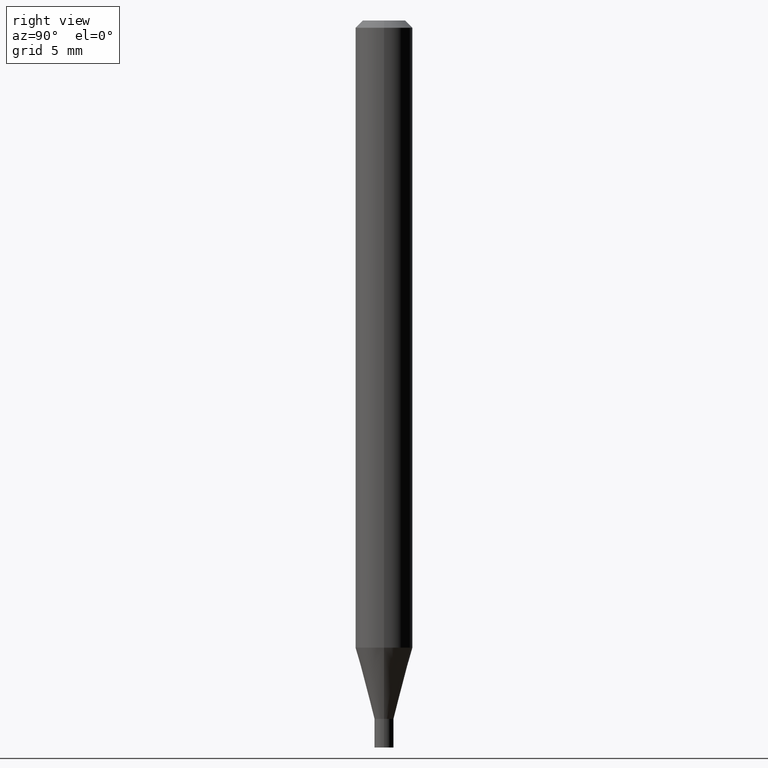
[diagram: clean part render]
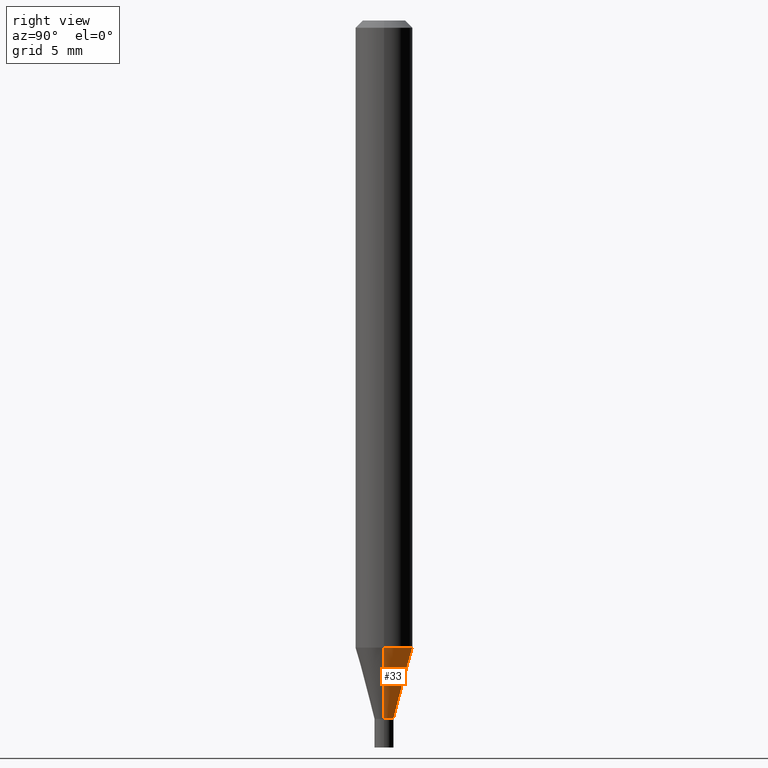
[diagram: same view with one face highlighted and labeled with its STEP entity id]
A machine part, right view. The second image highlights one B-rep face of the part: STEP entity #33.
In plain terms, the highlighted conical surface has half-angle 15 deg.
Its self-contained STEP definition (entity closure, byte-faithful):
#1 = FACE_OUTER_BOUND ( 'NONE', #382, .T. ) ;
#2 = EDGE_CURVE ( 'NONE', #422, #237, #458, .T. ) ;
#9 = DIRECTION ( 'NONE',  ( -2.445468806185136597E-29, 3.491481338843145583E-15, 1.000000000000000000 ) ) ;
#13 = AXIS2_PLACEMENT_3D ( 'NONE', #110, #395, #439 ) ;
#33 = ADVANCED_FACE ( 'NONE', ( #1 ), #206, .T. ) ;
#68 = ORIENTED_EDGE ( 'NONE', *, *, #449, .T. ) ;
#70 = DIRECTION ( 'NONE',  ( -2.445468806185136597E-29, 3.491481338843145583E-15, 1.000000000000000000 ) ) ;
#91 = CIRCLE ( 'NONE', #459, 0.05904999999999999832 ) ;
#97 = CARTESIAN_POINT ( 'NONE',  ( 0.01969999999999964835, -5.168439825889506203E-15, -1.440900000000000292 ) ) ;
#102 = LINE ( 'NONE', #97, #441 ) ;
#108 = VERTEX_POINT ( 'NONE', #406 ) ;
#110 = CARTESIAN_POINT ( 'NONE',  ( 3.523676002832163563E-29, -5.030875461139089355E-15, -1.440900000000000292 ) ) ;
#142 = VERTEX_POINT ( 'NONE', #241 ) ;
#156 = EDGE_CURVE ( 'NONE', #142, #108, #91, .T. ) ;
#168 = ORIENTED_EDGE ( 'NONE', *, *, #311, .F. ) ;
#192 = DIRECTION ( 'NONE',  ( 0.2588190451025213501, 1.565188264969621968E-15, 0.9659258262890682012 ) ) ;
#194 = CARTESIAN_POINT ( 'NONE',  ( 0.01969999999999964835, -5.168439825889506203E-15, -1.440900000000000292 ) ) ;
#195 = ORIENTED_EDGE ( 'NONE', *, *, #2, .T. ) ;
#200 = CARTESIAN_POINT ( 'NONE',  ( -0.01969999999999964835, -4.890898542194352413E-15, -1.440900000000000292 ) ) ;
#206 = CONICAL_SURFACE ( 'NONE', #13, 0.01969999999999964835, 0.2617993877991500740 ) ;
#237 = VERTEX_POINT ( 'NONE', #277 ) ;
#241 = CARTESIAN_POINT ( 'NONE',  ( 0.05905000000000000526, -4.930473727984467433E-15, -1.294043800722163962 ) ) ;
#242 = DIRECTION ( 'NONE',  ( 1.000000000000000000, -6.982962677686255667E-15, 0.000000000000000000 ) ) ;
#243 = VECTOR ( 'NONE', #341, 39.37007874015747433 ) ;
#264 = AXIS2_PLACEMENT_3D ( 'NONE', #353, #9, #242 ) ;
#273 = LINE ( 'NONE', #200, #243 ) ;
#277 = CARTESIAN_POINT ( 'NONE',  ( -0.01969999999999964835, -4.494726419297553505E-15, -1.440900000000000292 ) ) ;
#311 = EDGE_CURVE ( 'NONE', #422, #142, #102, .T. ) ;
#321 = ORIENTED_EDGE ( 'NONE', *, *, #156, .F. ) ;
#341 = DIRECTION ( 'NONE',  ( -0.2588190451025213501, 5.211531920934551042E-15, 0.9659258262890682012 ) ) ;
#348 = DIRECTION ( 'NONE',  ( 1.000000000000000000, -6.982962677686273021E-15, 0.000000000000000000 ) ) ;
#353 = CARTESIAN_POINT ( 'NONE',  ( 3.523676002832163563E-29, -5.030875461139089355E-15, -1.440900000000000292 ) ) ;
#382 = EDGE_LOOP ( 'NONE', ( #195, #68, #321, #168 ) ) ;
#394 = CARTESIAN_POINT ( 'NONE',  ( 3.164543748503307071E-29, -4.518129781867094090E-15, -1.294043800722163962 ) ) ;
#395 = DIRECTION ( 'NONE',  ( -2.445468806185136597E-29, 3.491481338843145583E-15, 1.000000000000000000 ) ) ;
#406 = CARTESIAN_POINT ( 'NONE',  ( -0.05905000000000000526, -4.098554296400754597E-15, -1.294043800722163962 ) ) ;
#422 = VERTEX_POINT ( 'NONE', #194 ) ;
#439 = DIRECTION ( 'NONE',  ( 1.000000000000000000, -6.982962677686255667E-15, 0.000000000000000000 ) ) ;
#441 = VECTOR ( 'NONE', #192, 39.37007874015747433 ) ;
#449 = EDGE_CURVE ( 'NONE', #237, #108, #273, .T. ) ;
#458 = CIRCLE ( 'NONE', #264, 0.01969999999999964835 ) ;
#459 = AXIS2_PLACEMENT_3D ( 'NONE', #394, #70, #348 ) ;